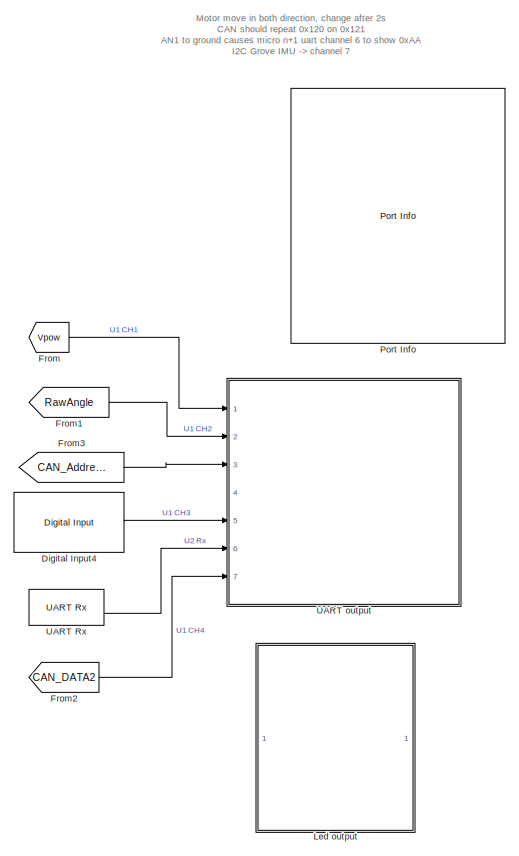
[diagram: root canvas - part 1/2, left side, full height]
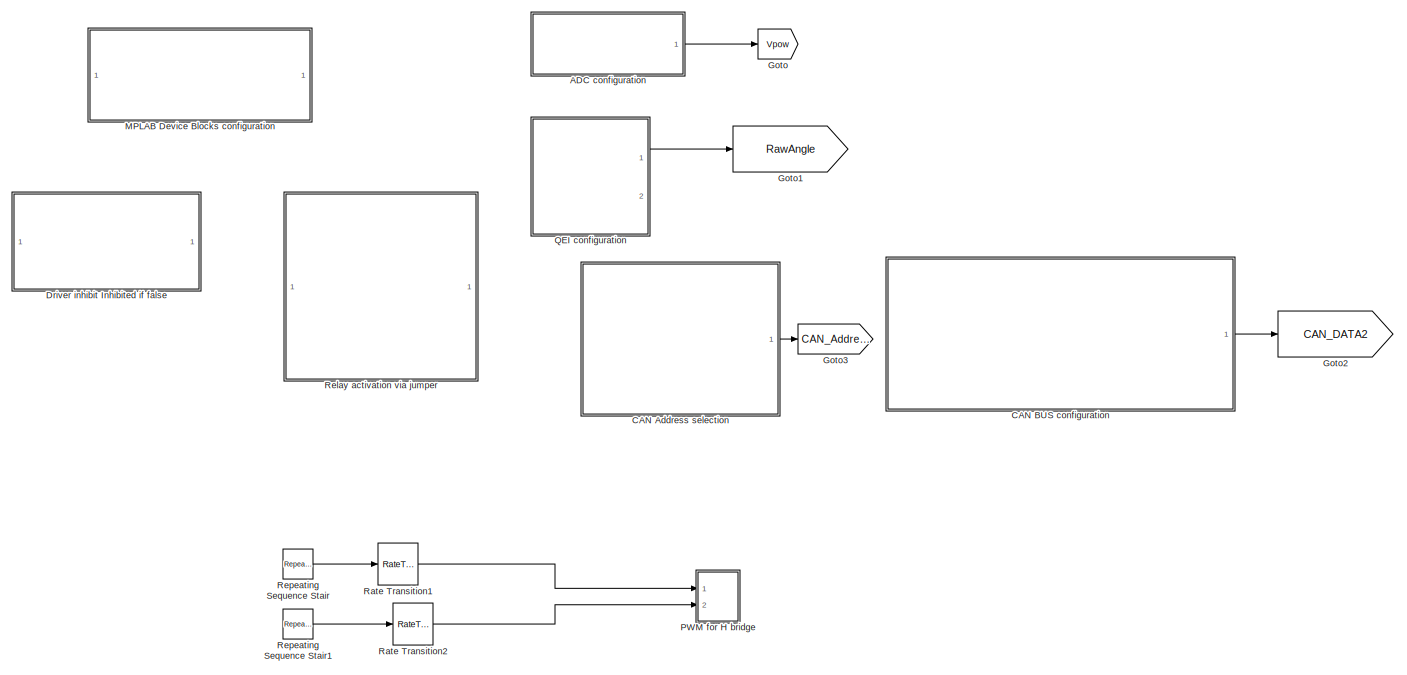
[diagram: root canvas - part 2/2, center side, full height]
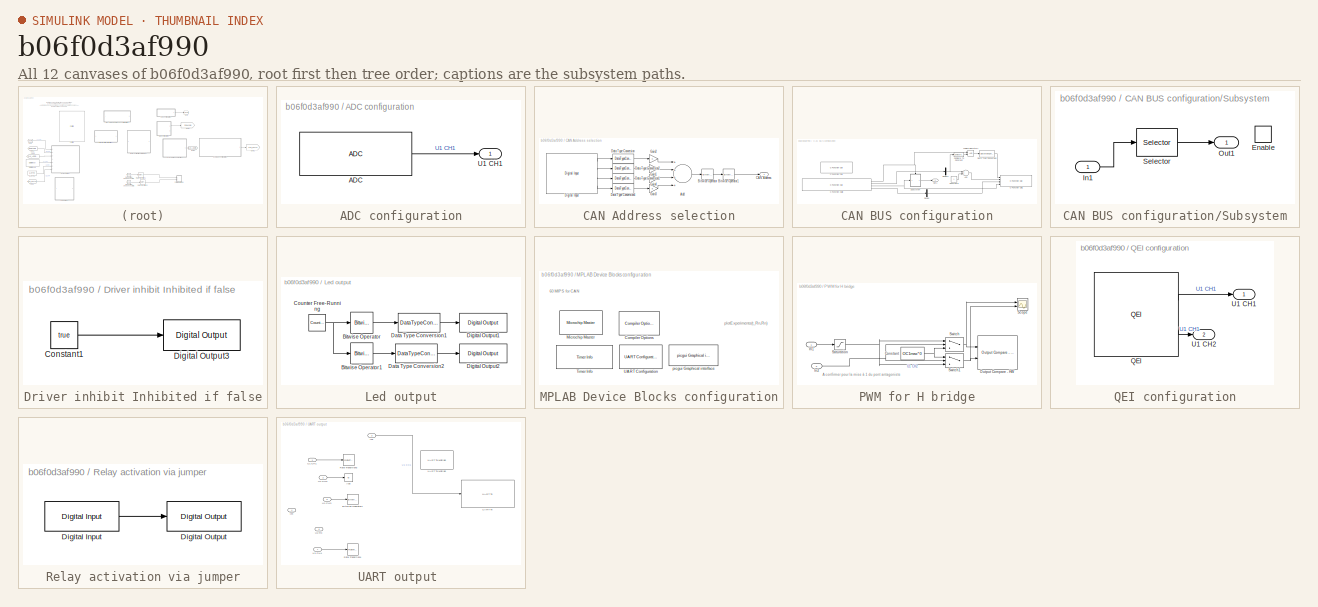
[diagram: thumbnail index - all 12 canvases of the model, root first then tree order]
MODEL slx_b06f0d3af990
KIND model
CONFIG AbsTol = auto
CONFIG EnableMultiTasking = on
CONFIG FixedStep = 1/5000
CONFIG MaxStep = auto
CONFIG MinStep = auto
CONFIG RelTol = 1e-3
CONFIG SampleTimeConstraint = Unconstrained
CONFIG Solver = FixedStepDiscrete
CONFIG SolverName = FixedStepDiscrete
CONFIG StartTime = 0.0
CONFIG StopTime = 10.0
BLOCK [SubSystem] ADC configuration
  Ports = [0, 1]
  RequestExecContextInheritance = off
BLOCK [Reference] ADC configuration/ADC  REF=MCHP_Blockset/Analog IO/ADC
  Ports = [0, 1]
  Priority = 5
  SourceBlock = MCHP_Blockset/Analog IO/ADC
  SourceProductName = MPLAB® Device Blocks for Simulink®
BLOCK [Outport] ADC configuration/U1 CH1
  IconDisplay = Port number
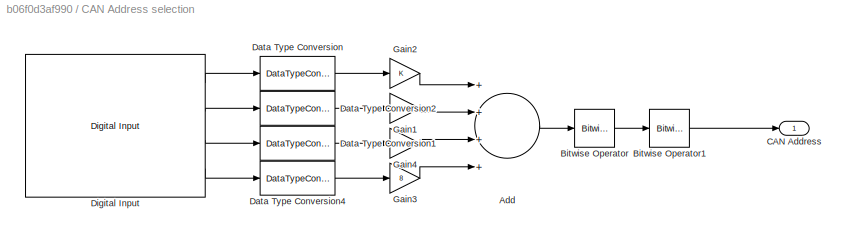
BLOCK [SubSystem] CAN Address selection
  Ports = [0, 1]
  RequestExecContextInheritance = off
BLOCK [Sum] CAN Address selection/Add
  InputSameDT = off
  Inputs = ++++
  OutDataTypeStr = uint8
  Ports = [4, 1]
  SaturateOnIntegerOverflow = off
BLOCK [Reference] CAN Address selection/Bitwise Operator  REF=simulink/Logic and Bit
Operations/Bitwise
Operator
  Ports = [1, 1]
  SourceBlock = simulink/Logic and Bit\nOperations/Bitwise\nOperator
  SourceProductBaseCode = SL
  SourceProductName = Simulink
  SourceType = Bitwise Operator
BLOCK [Reference] CAN Address selection/Bitwise Operator1  REF=simulink/Logic and Bit
Operations/Bitwise
Operator
  Ports = [1, 1]
  SourceBlock = simulink/Logic and Bit\nOperations/Bitwise\nOperator
  SourceProductBaseCode = SL
  SourceProductName = Simulink
  SourceType = Bitwise Operator
BLOCK [Outport] CAN Address selection/CAN Address
  IconDisplay = Port number
BLOCK [DataTypeConversion] CAN Address selection/Data Type Conversion
  OutDataTypeStr = uint16
  RndMeth = Floor
  SaturateOnIntegerOverflow = off
BLOCK [DataTypeConversion] CAN Address selection/Data Type Conversion1
  OutDataTypeStr = uint16
  RndMeth = Floor
  SaturateOnIntegerOverflow = off
BLOCK [DataTypeConversion] CAN Address selection/Data Type Conversion2
  OutDataTypeStr = uint16
  RndMeth = Floor
  SaturateOnIntegerOverflow = off
BLOCK [DataTypeConversion] CAN Address selection/Data Type Conversion4
  OutDataTypeStr = uint16
  RndMeth = Floor
  SaturateOnIntegerOverflow = off
BLOCK [Reference] CAN Address selection/Digital Input  REF=MCHP_Blockset/Digital IO/Digital Input
  Ports = [0, 4]
  SourceBlock = MCHP_Blockset/Digital IO/Digital Input
  SourceProductName = MPLAB Device Blocks for Simulink
  SourceType = Input driver for Digital Input Pins
BLOCK [Gain] CAN Address selection/Gain1
  Gain = 2
  OutDataTypeStr = uint16
  ParamDataTypeStr = Inherit: Inherit via internal rule
  SaturateOnIntegerOverflow = off
BLOCK [Gain] CAN Address selection/Gain2
  OutDataTypeStr = uint16
  ParamDataTypeStr = Inherit: Inherit via internal rule
  SaturateOnIntegerOverflow = off
BLOCK [Gain] CAN Address selection/Gain3
  Gain = 8
  OutDataTypeStr = uint16
  ParamDataTypeStr = Inherit: Inherit via internal rule
  SaturateOnIntegerOverflow = off
BLOCK [Gain] CAN Address selection/Gain4
  Gain = 4
  OutDataTypeStr = uint16
  ParamDataTypeStr = Inherit: Inherit via internal rule
  SaturateOnIntegerOverflow = off
BLOCK [SubSystem] CAN BUS configuration
  Ports = [0, 1]
  RequestExecContextInheritance = off
BLOCK [Sum] CAN BUS configuration/Add
  AccumDataTypeStr = uint16
  InputSameDT = off
  OutDataTypeStr = Inherit: Inherit via internal rule
  Ports = [2, 1]
  SaturateOnIntegerOverflow = off
BLOCK [Reference] CAN BUS configuration/C Function Call  REF=MCHP_Blockset/User Functions/C Function Call
  Ports = []
  SourceBlock = MCHP_Blockset/User Functions/C Function Call
  SourceProductName = MPLAB Device Blocks for Simulink
  SourceType = C Function Call
  UserDataPersistent = on
BLOCK [Reference] CAN BUS configuration/C Function Call1  REF=MCHP_Blockset/User Functions/C Function Call
  Ports = [4]
  SourceBlock = MCHP_Blockset/User Functions/C Function Call
  SourceProductName = MPLAB Device Blocks for Simulink
  SourceType = C Function Call
  UserDataPersistent = on
BLOCK [Reference] CAN BUS configuration/C Function Call3  REF=MCHP_Blockset/User Functions/C Function Call
  Ports = [0, 4]
  SourceBlock = MCHP_Blockset/User Functions/C Function Call
  SourceProductName = MPLAB Device Blocks for Simulink
  SourceType = C Function Call
  UserDataPersistent = on
BLOCK [Reference] CAN BUS configuration/Compare To Constant  REF=simulink/Logic and Bit
Operations/Compare
To Constant
  Ports = [1, 1]
  SourceBlock = simulink/Logic and Bit\nOperations/Compare\nTo Constant
  SourceProductBaseCode = SL
  SourceProductName = Simulink
  SourceType = Compare To Constant
BLOCK [Constant] CAN BUS configuration/Constant5
  OutDataTypeStr = uint16
  SampleTime = -1
BLOCK [DataTypeConversion] CAN BUS configuration/Data Type Conversion
  RndMeth = Floor
  SaturateOnIntegerOverflow = off
BLOCK [Demux] CAN BUS configuration/Demux
  DisplayOption = bar
  Outputs = 1
  Ports = [1, 1]
BLOCK [Demux] CAN BUS configuration/Demux1
  DisplayOption = bar
  Outputs = 1
  Ports = [1, 1]
BLOCK [Logic] CAN BUS configuration/Logical Operator1
  AllPortsSameDT = off
  OutDataTypeStr = boolean
  Ports = [2, 1]
BLOCK [Outport] CAN BUS configuration/Out1
  IconDisplay = Port number
BLOCK [SubSystem] CAN BUS configuration/Subsystem
  Ports = [1, 1, 1]
  RequestExecContextInheritance = off
BLOCK [EnablePort] CAN BUS configuration/Subsystem/Enable
  Ports = []
BLOCK [Inport] CAN BUS configuration/Subsystem/In1
  IconDisplay = Port number
BLOCK [Outport] CAN BUS configuration/Subsystem/Out1
  IconDisplay = Port number
  VectorParamsAs1DForOutWhenUnconnected = off
BLOCK [Selector] CAN BUS configuration/Subsystem/Selector
  IndexOptions = Index vector (dialog)
  Indices = [2]
  InputPortWidth = 8
  OutputSizes = 1
  Ports = [1, 1]
BLOCK [Reference] Digital Input4  REF=MCHP_Blockset/Digital IO/Digital Input
  Ports = [0, 1]
  SourceBlock = MCHP_Blockset/Digital IO/Digital Input
  SourceProductName = MPLAB Device Blocks for Simulink
  SourceType = Input driver for Digital Input Pins
BLOCK [SubSystem] Driver inhibit Inhibited if false
  Ports = []
  RequestExecContextInheritance = off
BLOCK [Constant] Driver inhibit Inhibited if false/Constant1
  Value = true
BLOCK [Reference] Driver inhibit Inhibited if false/Digital Output3  REF=MCHP_Blockset/Digital IO/Digital Output
  Ports = [1]
  SourceBlock = MCHP_Blockset/Digital IO/Digital Output
  SourceProductName = MPLAB Device Blocks for Simulink
BLOCK [From] From
  GotoTag = Vpow
BLOCK [From] From1
  GotoTag = RawAngle
BLOCK [From] From2
  GotoTag = CAN_DATA2
BLOCK [From] From3
  GotoTag = CAN_Address
BLOCK [Goto] Goto
  GotoTag = Vpow
BLOCK [Goto] Goto1
  GotoTag = RawAngle
BLOCK [Goto] Goto2
  GotoTag = CAN_DATA2
BLOCK [Goto] Goto3
  GotoTag = CAN_Address
BLOCK [SubSystem] Led output
  Ports = []
  RequestExecContextInheritance = off
BLOCK [Reference] Led output/Bitwise Operator  REF=simulink/Logic and Bit
Operations/Bitwise
Operator
  Ports = [1, 1]
  SourceBlock = simulink/Logic and Bit\nOperations/Bitwise\nOperator
  SourceProductBaseCode = SL
  SourceProductName = Simulink
  SourceType = Bitwise Operator
BLOCK [Reference] Led output/Bitwise Operator1  REF=simulink/Logic and Bit
Operations/Bitwise
Operator
  Ports = [1, 1]
  SourceBlock = simulink/Logic and Bit\nOperations/Bitwise\nOperator
  SourceProductBaseCode = SL
  SourceProductName = Simulink
  SourceType = Bitwise Operator
BLOCK [Reference] Led output/Counter Free-Running  REF=simulink/Sources/Counter
Free-Running
  Ports = [0, 1]
  SourceBlock = simulink/Sources/Counter\nFree-Running
  SourceProductBaseCode = SL
  SourceProductName = Simulink
  SourceType = Counter Free-Running
BLOCK [DataTypeConversion] Led output/Data Type Conversion1
  RndMeth = Floor
  SaturateOnIntegerOverflow = off
BLOCK [DataTypeConversion] Led output/Data Type Conversion2
  RndMeth = Floor
  SaturateOnIntegerOverflow = off
BLOCK [Reference] Led output/Digital Output1  REF=MCHP_Blockset/Digital IO/Digital Output
  Ports = [1]
  SourceBlock = MCHP_Blockset/Digital IO/Digital Output
  SourceProductName = MPLAB Device Blocks for Simulink
BLOCK [Reference] Led output/Digital Output2  REF=MCHP_Blockset/Digital IO/Digital Output
  Ports = [1]
  SourceBlock = MCHP_Blockset/Digital IO/Digital Output
  SourceProductName = MPLAB Device Blocks for Simulink
BLOCK [SubSystem] MPLAB Device Blocks configuration
  Ports = []
  RequestExecContextInheritance = off
BLOCK [Reference] MPLAB Device Blocks configuration/Compiler Options  REF=MCHP_Blockset/System Configuration/Compiler Options
  Ports = []
  Priority = 1
  SourceBlock = MCHP_Blockset/System Configuration/Compiler Options
  SourceProductName = MPLAB® Device Blocks for Simulink®
BLOCK [Reference] MPLAB Device Blocks configuration/Microchip Master  REF=MCHP_Blockset/System Configuration/Microchip Master
  Ports = []
  Priority = 1
  SourceBlock = MCHP_Blockset/System Configuration/Microchip Master
  SourceProductName = MPLAB® Device Blocks for Simulink®
BLOCK [Reference] MPLAB Device Blocks configuration/Timer Info  REF=MCHP_Blockset/System Info/Timer Info
  Ports = []
  SourceBlock = MCHP_Blockset/System Info/Timer Info
  SourceProductName = MPLAB® Device Blocks for Simulink®
BLOCK [Reference] MPLAB Device Blocks configuration/UART Configuration  REF=MCHP_Blockset/BUS UART/UART Configuration
  Ports = []
  SourceBlock = MCHP_Blockset/BUS UART/UART Configuration
  SourceProductName = MPLAB® Device Blocks for Simulink®
  SourceType = Configuration for UART peripheral
BLOCK [Reference] MPLAB Device Blocks configuration/picgui Graphical interface  REF=MCHP_Blockset/BUS UART/picgui
Graphical interface
  Ports = []
  SourceBlock = MCHP_Blockset/BUS UART/picgui\nGraphical interface
  SourceProductName = MPLAB® Device Blocks for Simulink®
BLOCK [SubSystem] PWM for H bridge
  Ports = [2]
  RequestExecContextInheritance = off
BLOCK [Constant] PWM for H bridge/Constant
  Value = OC1max*0
BLOCK [Inport] PWM for H bridge/In1
  IconDisplay = Port number
BLOCK [Inport] PWM for H bridge/In2
  IconDisplay = Port number
  Port = 2
BLOCK [Reference] PWM for H bridge/Output Compare - HW  REF=MCHP_Blockset/Pulse Input//Output/Output Compare - HW
  Ports = [2]
  SourceBlock = MCHP_Blockset/Pulse Input//Output/Output Compare - HW
  SourceProductName = MPLAB Device Blocks for Simulink
  SourceType = Input driver for Output Compare Peripheral Hardware
  UserDataPersistent = on
BLOCK [Saturate] PWM for H bridge/Saturation
  InputPortMap = u0
  LowerLimit = 0
  Ports = [1, 1]
  UpperLimit = OC1max
BLOCK [Scope] PWM for H bridge/Scope
  Floating = off
  NumInputPorts = 2
  Ports = [2]
  ScopeSpecificationString = Simulink.scopes.TimeScopeBlockCfg('CurrentConfiguration', extmgr.ConfigurationSet(extmgr.Configuration('Core','General UI',true),extmgr.Configuration('Core','Source UI',true),extmgr.Configuration('Sources','WiredSimulink',true),extmgr.Configuration('Visuals','Time Domain',true,'SerializedDisplays',{struct('MinYLimReal','-375.00000','MaxYLimReal','3375.00000','YLabelReal','','MinYLimMag',' 0.00000'...<+1407ch>
BLOCK [Switch] PWM for H bridge/Switch
  Criteria = u2 > Threshold
  InputSameDT = off
  SaturateOnIntegerOverflow = off
BLOCK [Switch] PWM for H bridge/Switch1
  Criteria = u2 > Threshold
  InputSameDT = off
  SaturateOnIntegerOverflow = off
BLOCK [Reference] Port Info  REF=MCHP_Blockset/System Info/Port Info
  Ports = []
  SourceBlock = MCHP_Blockset/System Info/Port Info
  SourceProductName = MPLAB® Device Blocks for Simulink®
BLOCK [SubSystem] QEI configuration
  Ports = [0, 2]
  RequestExecContextInheritance = off
BLOCK [Reference] QEI configuration/QEI  REF=MCHP_Blockset/QEI/QEI
  Ports = [0, 2]
  SourceBlock = MCHP_Blockset/QEI/QEI
  SourceProductName = MPLAB® Device Blocks for Simulink®
  SourceType = Output Driver for Quadrature Encoder Interface (QEI) peripheral
  UserDataPersistent = on
BLOCK [Outport] QEI configuration/U1 CH1
  IconDisplay = Port number
BLOCK [Outport] QEI configuration/U1 CH2
  IconDisplay = Port number
  Port = 2
BLOCK [RateTransition] Rate Transition1
  Deterministic = off
  InitialCondition = 232
BLOCK [RateTransition] Rate Transition2
  Deterministic = off
  InitialCondition = 232
BLOCK [SubSystem] Relay activation via jumper
  Ports = []
  RequestExecContextInheritance = off
BLOCK [Reference] Relay activation via jumper/Digital Input  REF=MCHP_Blockset/Digital IO/Digital Input
  Ports = [0, 1]
  SourceBlock = MCHP_Blockset/Digital IO/Digital Input
  SourceProductName = MPLAB Device Blocks for Simulink
  SourceType = Input driver for Digital Input Pins
BLOCK [Reference] Relay activation via jumper/Digital Output  REF=MCHP_Blockset/Digital IO/Digital Output
  Ports = [1]
  SourceBlock = MCHP_Blockset/Digital IO/Digital Output
  SourceProductName = MPLAB Device Blocks for Simulink
BLOCK [Reference] Repeating Sequence Stair  REF=simulink/Sources/Repeating
Sequence
Stair
  Ports = [0, 1]
  SourceBlock = simulink/Sources/Repeating\nSequence\nStair
  SourceProductBaseCode = SL
  SourceProductName = Simulink
  SourceType = Repeating Sequence Stair
BLOCK [Reference] Repeating Sequence Stair1  REF=simulink/Sources/Repeating
Sequence
Stair
  Ports = [0, 1]
  SourceBlock = simulink/Sources/Repeating\nSequence\nStair
  SourceProductBaseCode = SL
  SourceProductName = Simulink
  SourceType = Repeating Sequence Stair
BLOCK [Reference] UART Rx  REF=MCHP_Blockset/BUS UART/UART Rx
  Ports = [0, 2]
  SourceBlock = MCHP_Blockset/BUS UART/UART Rx
  SourceProductName = MPLAB Device Blocks for Simulink
  SourceType = UART Rx Input Driver
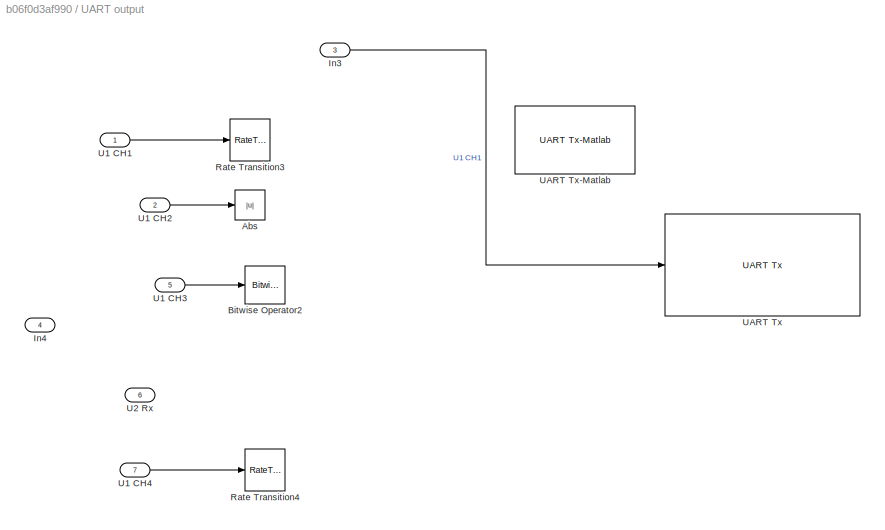
BLOCK [SubSystem] UART output 
  Ports = [7]
  RequestExecContextInheritance = off
BLOCK [Abs] UART output /Abs
  SaturateOnIntegerOverflow = off
BLOCK [Reference] UART output /Bitwise Operator2  REF=simulink/Logic and Bit
Operations/Bitwise
Operator
  Ports = [1, 1]
  SourceBlock = simulink/Logic and Bit\nOperations/Bitwise\nOperator
  SourceProductBaseCode = SL
  SourceProductName = Simulink
  SourceType = Bitwise Operator
BLOCK [Inport] UART output /In3
  IconDisplay = Port number
  Port = 3
BLOCK [Inport] UART output /In4
  IconDisplay = Port number
  Port = 4
BLOCK [RateTransition] UART output /Rate Transition3
  Deterministic = off
BLOCK [RateTransition] UART output /Rate Transition4
  Deterministic = off
BLOCK [Inport] UART output /U1 CH1
  IconDisplay = Port number
BLOCK [Inport] UART output /U1 CH2
  IconDisplay = Port number
  Port = 2
BLOCK [Inport] UART output /U1 CH3
  IconDisplay = Port number
  Port = 5
BLOCK [Inport] UART output /U1 CH4
  IconDisplay = Port number
  Port = 7
BLOCK [Inport] UART output /U2 Rx
  IconDisplay = Port number
  Port = 6
BLOCK [Reference] UART output /UART Tx  REF=MCHP_Blockset/BUS UART/UART Tx
  Ports = [1]
  SourceBlock = MCHP_Blockset/BUS UART/UART Tx
  SourceProductName = MPLAB Device Blocks for Simulink
  SourceType = UART Tx Output Driver
BLOCK [Reference] UART output /UART Tx-Matlab  REF=MCHP_Blockset/BUS UART/UART Tx-Matlab
  Commented = on
  Ports = [1]
  SourceBlock = MCHP_Blockset/BUS UART/UART Tx-Matlab
  SourceProductName = MPLAB® Device Blocks for Simulink®
  SourceType = Higl Level UART protocol
ANNOTATION (root): Motor move in both direction, change after 2s CAN should repeat 0x120 on 0x121 AN1 to ground causes micro n+1 uart channel 6 to show 0xAA I2C Grove IMU -> channel 7
ANNOTATION MPLAB Device Blocks configuration: 60 MIPS for CAN
ANNOTATION MPLAB Device Blocks configuration: plotExperiments(t_Rn,Rn)
ANNOTATION PWM for H bridge: A confirmer pour la mise à 1 du pont antagoniste
LINE ADC configuration/ADC:1 -> ADC configuration/U1 CH1:1
LINE ADC configuration:1 -> Goto:1
LINE CAN Address selection/Add:1 -> CAN Address selection/Bitwise Operator:1
LINE CAN Address selection/Bitwise Operator1:1 -> CAN Address selection/CAN Address:1
LINE CAN Address selection/Bitwise Operator:1 -> CAN Address selection/Bitwise Operator1:1
LINE CAN Address selection/Data Type Conversion1:1 -> CAN Address selection/Gain4:1
LINE CAN Address selection/Data Type Conversion2:1 -> CAN Address selection/Gain1:1
LINE CAN Address selection/Data Type Conversion4:1 -> CAN Address selection/Gain3:1
LINE CAN Address selection/Data Type Conversion:1 -> CAN Address selection/Gain2:1
LINE CAN Address selection/Digital Input:1 -> CAN Address selection/Data Type Conversion:1
LINE CAN Address selection/Digital Input:2 -> CAN Address selection/Data Type Conversion2:1
LINE CAN Address selection/Digital Input:3 -> CAN Address selection/Data Type Conversion1:1
LINE CAN Address selection/Digital Input:4 -> CAN Address selection/Data Type Conversion4:1
LINE CAN Address selection/Gain1:1 -> CAN Address selection/Add:2
LINE CAN Address selection/Gain2:1 -> CAN Address selection/Add:1
LINE CAN Address selection/Gain3:1 -> CAN Address selection/Add:4
LINE CAN Address selection/Gain4:1 -> CAN Address selection/Add:3
LINE CAN Address selection:1 -> Goto3:1
LINE CAN BUS configuration/Add:1 -> CAN BUS configuration/C Function Call1:2
NET CAN BUS configuration/C Function Call3:1 -> CAN BUS configuration/Logical Operator1:1, CAN BUS configuration/Subsystem:enable
LINE CAN BUS configuration/C Function Call3:2 -> CAN BUS configuration/Demux1:1
NET CAN BUS configuration/C Function Call3:3 -> CAN BUS configuration/C Function Call1:4, CAN BUS configuration/Subsystem:1
LINE CAN BUS configuration/C Function Call3:4 -> CAN BUS configuration/Demux:1
LINE CAN BUS configuration/Compare To Constant:1 -> CAN BUS configuration/Logical Operator1:2
LINE CAN BUS configuration/Constant5:1 -> CAN BUS configuration/Add:2
LINE CAN BUS configuration/Data Type Conversion:1 -> CAN BUS configuration/C Function Call1:1
NET CAN BUS configuration/Demux1:1 -> CAN BUS configuration/Add:1, CAN BUS configuration/Compare To Constant:1
LINE CAN BUS configuration/Demux:1 -> CAN BUS configuration/C Function Call1:3
LINE CAN BUS configuration/Logical Operator1:1 -> CAN BUS configuration/Data Type Conversion:1
LINE CAN BUS configuration/Subsystem/In1:1 -> CAN BUS configuration/Subsystem/Selector:1
LINE CAN BUS configuration/Subsystem/Selector:1 -> CAN BUS configuration/Subsystem/Out1:1
LINE CAN BUS configuration/Subsystem:1 -> CAN BUS configuration/Out1:1
LINE CAN BUS configuration:1 -> Goto2:1
LINE Digital Input4:1 -> UART output :5
LINE Driver inhibit Inhibited if false/Constant1:1 -> Driver inhibit Inhibited if false/Digital Output3:1
LINE From1:1 -> UART output :2
LINE From2:1 -> UART output :7
LINE From3:1 -> UART output :3
LINE From:1 -> UART output :1
LINE Led output/Bitwise Operator1:1 -> Led output/Data Type Conversion2:1
LINE Led output/Bitwise Operator:1 -> Led output/Data Type Conversion1:1
NET Led output/Counter Free-Running:1 -> Led output/Bitwise Operator1:1, Led output/Bitwise Operator:1
LINE Led output/Data Type Conversion1:1 -> Led output/Digital Output1:1
LINE Led output/Data Type Conversion2:1 -> Led output/Digital Output2:1
NET PWM for H bridge/Constant:1 -> PWM for H bridge/Switch1:1, PWM for H bridge/Switch:3
LINE PWM for H bridge/In1:1 -> PWM for H bridge/Saturation:1
NET PWM for H bridge/In2:1 -> PWM for H bridge/Switch1:2, PWM for H bridge/Switch:2
NET PWM for H bridge/Saturation:1 -> PWM for H bridge/Switch1:3, PWM for H bridge/Switch:1
NET PWM for H bridge/Switch1:1 -> PWM for H bridge/Output Compare - HW:2, PWM for H bridge/Scope:2
NET PWM for H bridge/Switch:1 -> PWM for H bridge/Output Compare - HW:1, PWM for H bridge/Scope:1
LINE QEI configuration/QEI:1 -> QEI configuration/U1 CH1:1
LINE QEI configuration/QEI:2 -> QEI configuration/U1 CH2:1
LINE QEI configuration:1 -> Goto1:1
LINE Rate Transition1:1 -> PWM for H bridge:1
LINE Rate Transition2:1 -> PWM for H bridge:2
LINE Relay activation via jumper/Digital Input:1 -> Relay activation via jumper/Digital Output:1
LINE Repeating Sequence Stair1:1 -> Rate Transition2:1
LINE Repeating Sequence Stair:1 -> Rate Transition1:1
LINE UART Rx:2 -> UART output :6
LINE UART output /In3:1 -> UART output /UART Tx:1
LINE UART output /U1 CH1:1 -> UART output /Rate Transition3:1
LINE UART output /U1 CH2:1 -> UART output /Abs:1
LINE UART output /U1 CH3:1 -> UART output /Bitwise Operator2:1
LINE UART output /U1 CH4:1 -> UART output /Rate Transition4:1
note: NET lines group one-source signal fan-out (src -> all destinations, sorted); 1:1 wires keep LINE
